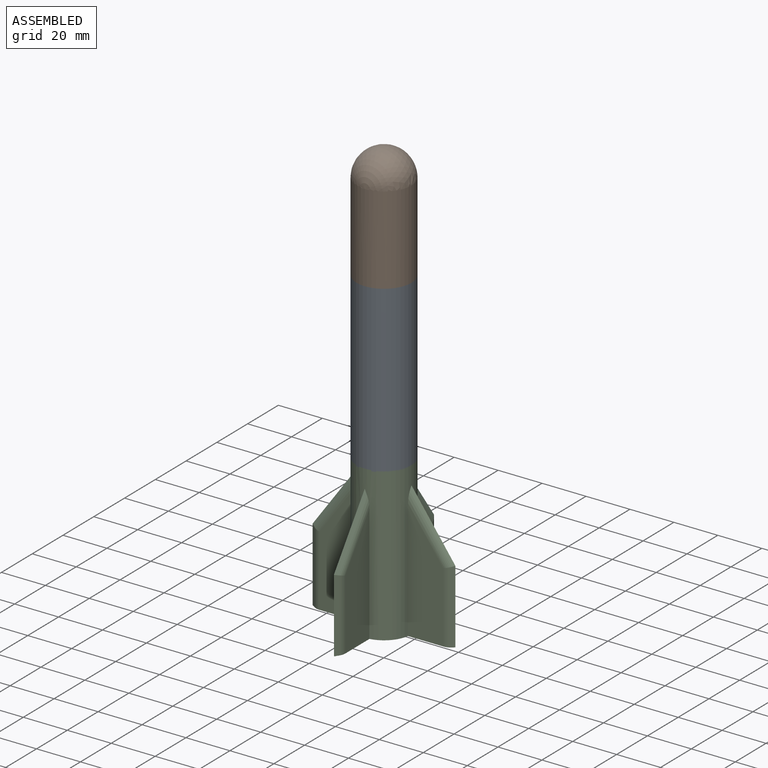
[diagram: assembled view]
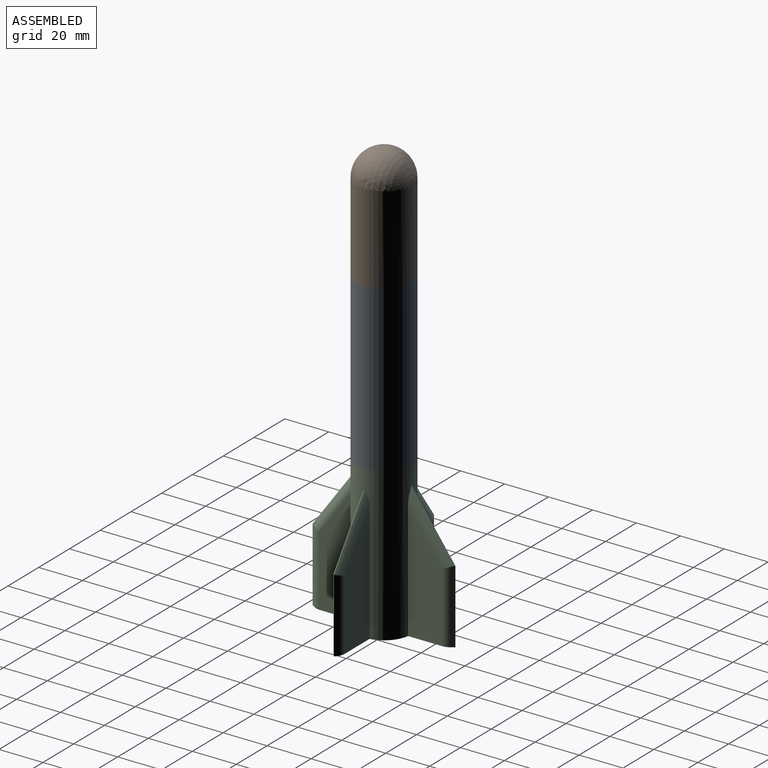
[diagram: assembled view, second angle]
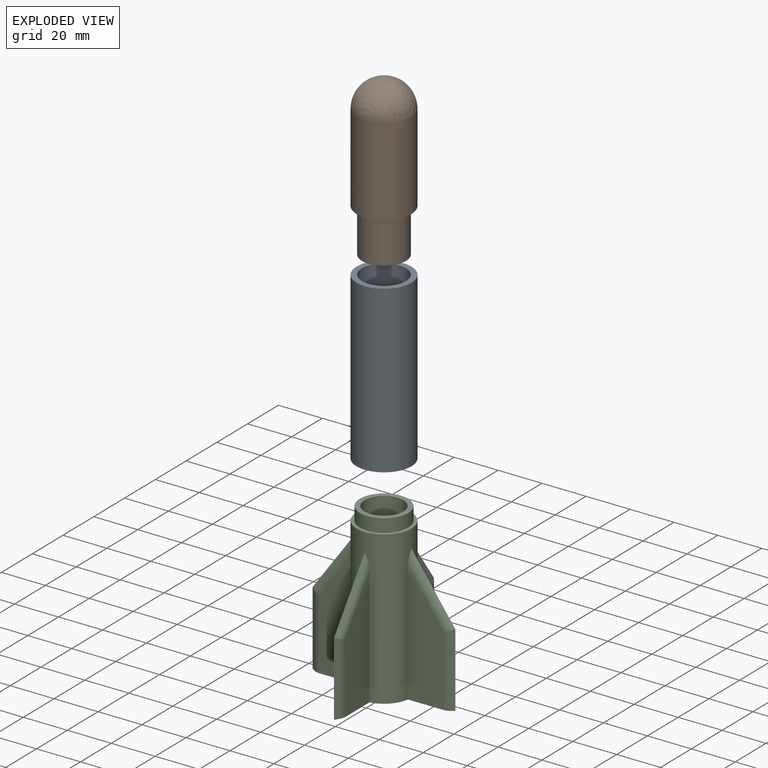
[diagram: exploded view]
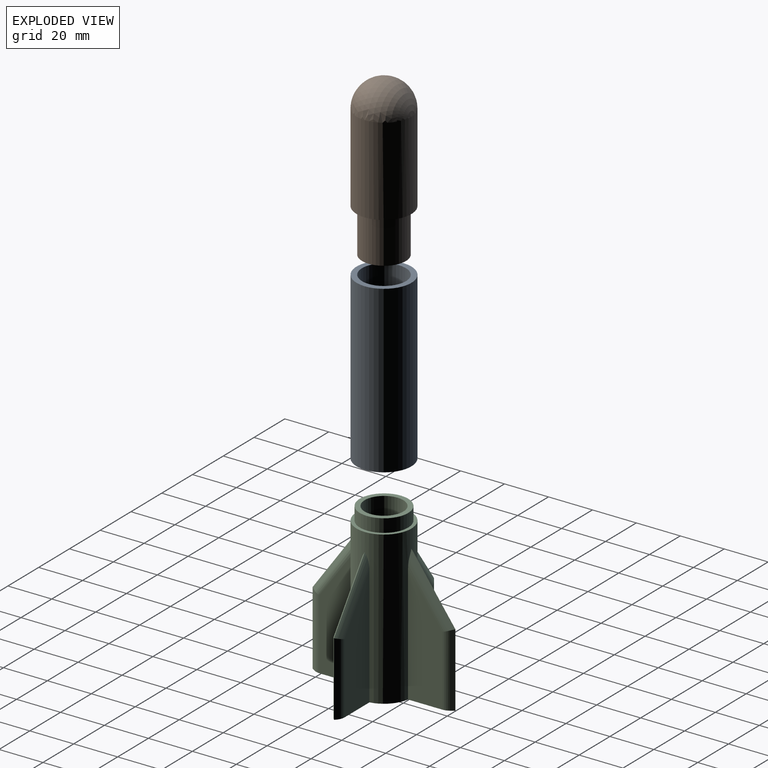
[diagram: exploded view, second angle]
ASSEMBLY  parts=3 mates=2
PART A: 8 faces, bbox 25x25x75.5 mm
  f0: cylinder r=6.5mm len=49mm, axis (0,0,-1), area 2001.2mm2, adj f4,f7
  f1: cylinder r=11mm len=22mm, axis (0,0,-1), area 449.2mm2, adj f3,f4
  f2: cylinder r=12.5mm len=75.5mm, axis (0,0,-1), area 5929.8mm2, adj f3,f5
  f3: plane 25x25mm, normal (0,0,-1), area 110.7mm2, adj f1,f2
  f4: plane 22x22mm, normal (0,0,-1), area 247.4mm2, adj f0,f1
  f5: plane 25x25mm, normal (0,0,1), area 176.7mm2, adj f2,f6
  f6: cylinder r=10mm len=20mm, axis (0,0,1), area 1256.6mm2, adj f5,f7
  f7: plane 20x20mm, normal (0,0,1), area 181.4mm2, adj f0,f6
PART B: 5 faces, bbox 25x25x72.5 mm
  f0: cylinder r=10mm len=20mm, axis (0,0,-1), area 1256.6mm2, adj f1,f3
  f1: plane 20x20mm, normal (0,0,-1), area 314.2mm2, adj f0
  f2: cylinder r=12.5mm len=40mm, axis (0,0,-1), area 3141.6mm2, adj f3,f4
  f3: plane 25x25mm, normal (0,0,-1), area 176.7mm2, adj f0,f2
  f4: sphere r=12.5mm, area 981.7mm2, adj f2
PART C: 46 faces, bbox 65x65x75.6 mm
  f0: cylinder r=12.5mm len=69.6mm, axis (0,0,-1), area 4521.6mm2, adj f2,f3,f8,f9,f10,f11,f12,f13
  f1: cylinder r=8.8mm len=75.6mm, axis (0,0,-1), area 4180.1mm2, adj f3,f5
  f2: plane 25x25mm, normal (0,0,1), area 110.7mm2, adj f0,f4
  f3: plane 65x65mm, normal (0,0,-1), area 544.1mm2, adj f0,f1,f6,f7,f10,f11,f12,f13
  f4: cylinder r=11mm len=22mm, axis (0,0,-1), area 414.7mm2, adj f2,f5
  f5: plane 22x22mm, normal (0,0,1), area 136.8mm2, adj f1,f4
  f6: plane 33.51x1.73mm, normal (-0.56,-0.83,0), area 69.2mm2, adj f3,f7,f9,f44
  f7: plane 33.51x1.73mm, normal (-0.56,0.83,0), area 69.2mm2, adj f3,f6,f8,f42
  f8: plane 28.41x20.09mm, normal (-0.45,0.83,0.32), area 68.3mm2, adj f0,f7,f9,f43
  f9: plane 28.41x20.09mm, normal (-0.45,-0.83,0.32), area 68.3mm2, adj f0,f6,f8,f45
  f10: plane 53.83x15.65mm, normal (0,-1,0), area 672.1mm2, adj f0,f3,f44,f45
  f11: plane 53.83x15.65mm, normal (0,1,0), area 672.1mm2, adj f0,f3,f42,f43
  f12: plane 54.58x16.09mm, normal (0,1,0), area 698.1mm2, adj f0,f3,f38,f39
  f13: plane 54.58x16.09mm, normal (0,-1,0), area 698.1mm2, adj f0,f3,f40,f41
  f14: plane 28x20.02mm, normal (0.57,-0.71,0.41), area 25.6mm2, adj f0,f15,f17,f41
  f15: plane 28x20.02mm, normal (0.57,0.71,0.41), area 25.6mm2, adj f0,f14,f16,f39
  f16: plane 33.51x0.54mm, normal (0.71,0.71,0), area 25.3mm2, adj f3,f15,f17,f38
  f17: plane 33.51x0.54mm, normal (0.71,-0.71,0), area 25.3mm2, adj f3,f14,f16,f40
  f18: plane 53.83x15.65mm, normal (-1,0,0), area 672.1mm2, adj f0,f3,f36,f37
  f19: plane 53.83x15.65mm, normal (1,0,0), area 672.1mm2, adj f0,f3,f34,f35
  f20: plane 28.41x20.09mm, normal (-0.83,0.45,0.32), area 68.3mm2, adj f0,f21,f23,f37
  f21: plane 28.41x20.09mm, normal (0.83,0.45,0.32), area 68.3mm2, adj f0,f20,f22,f35
  f22: plane 33.51x1.73mm, normal (0.83,0.56,0), area 69.2mm2, adj f3,f21,f23,f34
  f23: plane 33.51x1.73mm, normal (-0.83,0.56,0), area 69.2mm2, adj f3,f20,f22,f36
  f24: plane 53.83x15.65mm, normal (1,0,0), area 672.1mm2, adj f0,f3,f30,f31
  f25: plane 53.83x15.65mm, normal (-1,0,0), area 672.1mm2, adj f0,f3,f32,f33
  f26: plane 28.41x20.09mm, normal (-0.83,-0.45,0.32), area 68.3mm2, adj f0,f27,f29,f33
  f27: plane 28.41x20.09mm, normal (0.83,-0.45,0.32), area 68.3mm2, adj f0,f26,f28,f31
  f28: plane 33.51x1.73mm, normal (0.83,-0.56,0), area 69.2mm2, adj f3,f27,f29,f30
  f29: plane 33.51x1.73mm, normal (-0.83,-0.56,0), area 69.2mm2, adj f3,f26,f28,f32
  f30: cylinder r=5mm len=32.95mm, axis (0,0,1), area 95.7mm2, adj f3,f24,f28,f31
  f31: cylinder r=5mm len=27.1mm, axis (0,0.58,0.81), area 85.9mm2, adj f0,f24,f27,f30
  f32: cylinder r=5mm len=32.95mm, axis (0,0,1), area 95.7mm2, adj f3,f25,f29,f33
  f33: cylinder r=5mm len=27.1mm, axis (0,0.58,0.81), area 85.9mm2, adj f0,f25,f26,f32
  f34: cylinder r=5mm len=32.95mm, axis (0,0,1), area 95.7mm2, adj f3,f19,f22,f35
  f35: cylinder r=5mm len=27.1mm, axis (0,-0.58,0.81), area 85.9mm2, adj f0,f19,f21,f34
  f36: cylinder r=5mm len=32.95mm, axis (0,0,1), area 95.7mm2, adj f3,f18,f23,f37
  f37: cylinder r=5mm len=27.1mm, axis (0,-0.58,0.81), area 85.9mm2, adj f0,f18,f20,f36
  f38: cylinder r=5mm len=33.34mm, axis (0,0,1), area 128.7mm2, adj f3,f12,f16,f39
  f39: cylinder r=5mm len=29.15mm, axis (-0.58,0,0.81), area 120.2mm2, adj f0,f12,f15,f38
  f40: cylinder r=5mm len=33.34mm, axis (0,0,1), area 128.7mm2, adj f3,f13,f17,f41
  f41: cylinder r=5mm len=29.15mm, axis (-0.58,0,0.81), area 120.2mm2, adj f0,f13,f14,f40
  f42: cylinder r=5mm len=32.95mm, axis (0,0,1), area 95.7mm2, adj f3,f7,f11,f43
  f43: cylinder r=5mm len=27.1mm, axis (0.58,0,0.81), area 85.9mm2, adj f0,f8,f11,f42
  f44: cylinder r=5mm len=32.95mm, axis (0,0,1), area 95.7mm2, adj f3,f6,f10,f45
  f45: cylinder r=5mm len=27.1mm, axis (0.58,0,0.81), area 85.9mm2, adj f0,f9,f10,f44
PLACE A t=(-78.04,71.35,-54.38)mm
PLACE B t=(35.73,71.35,1.12)mm
PLACE C t=(-19.81,71.35,-123.48)mm
MATE fastened A.f0 <-> B.f0  axis (0,0,1) through (-19.81,71.35,1.12)mm
MATE fastened A.f0 <-> C.f4  axis (0,0,-1) through (-19.81,71.35,-47.88)mm
